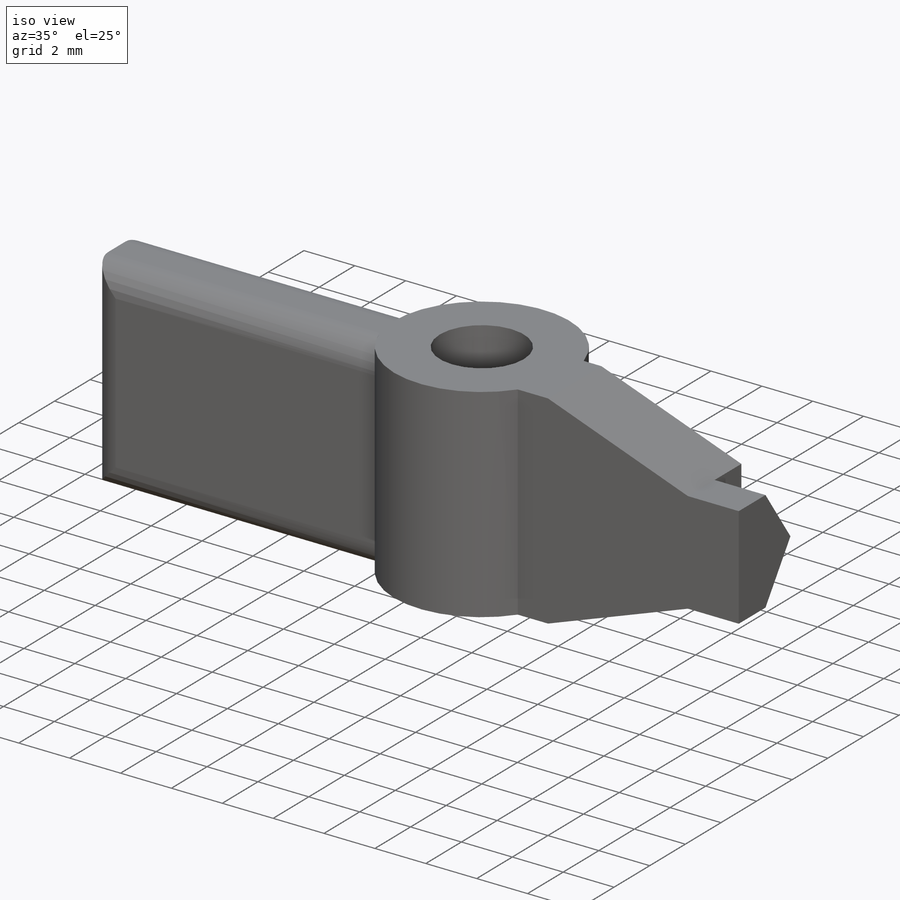
[diagram: iso view]
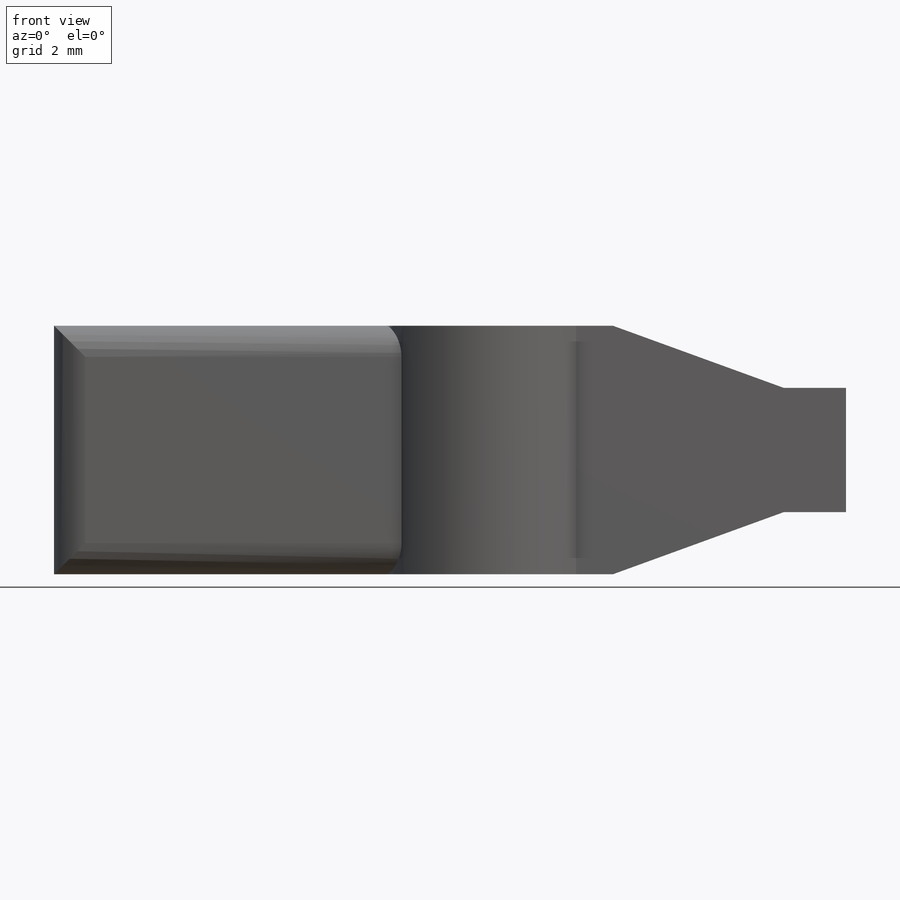
[diagram: front view]
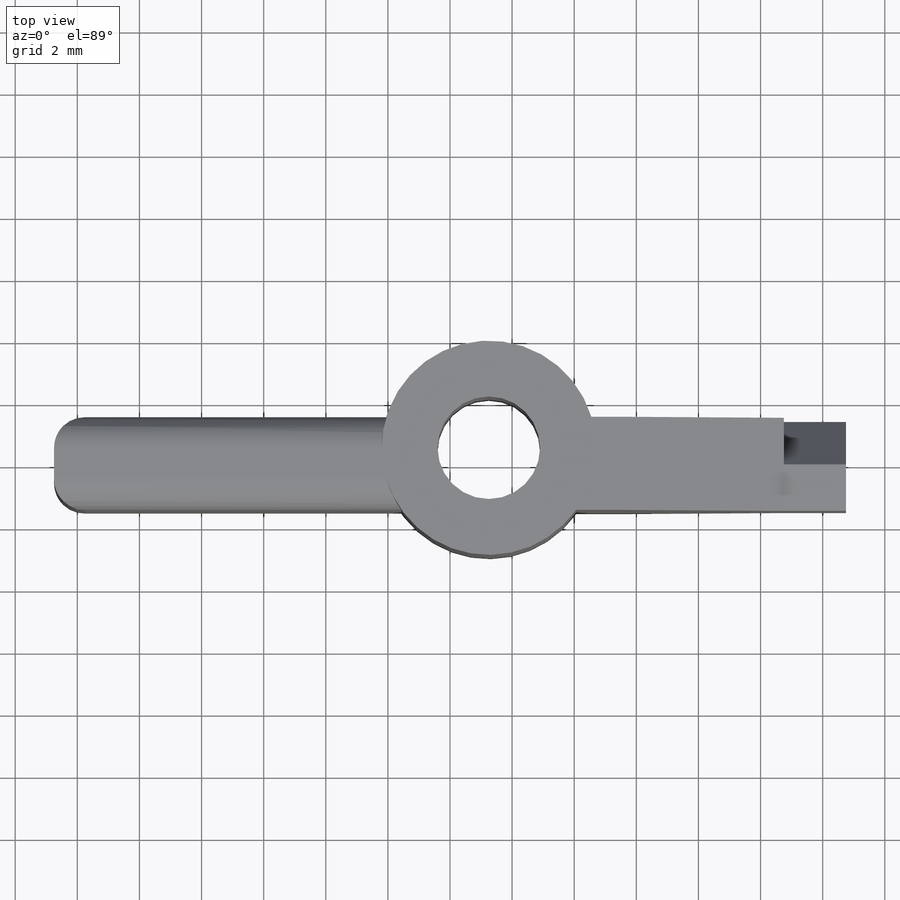
[diagram: top view]
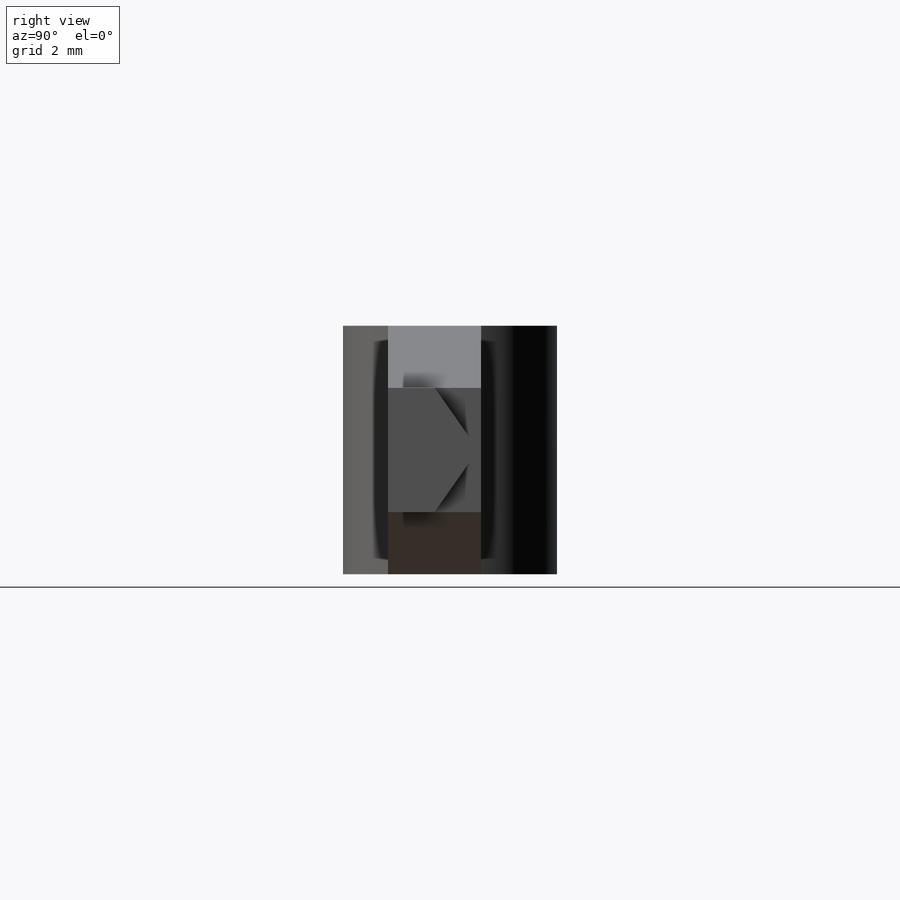
[diagram: right view]
SOLIDWORKS PART (.sldprt)
format: sldprt  version: not decoded by parser v0  size: 201,216 bytes
history: native  units: mm
features: sketch x3, cut_extrude x2, material x1, extrude x1, fillet x1 (+13 scaffold rows collapsed)
feature tree (21):
  scaffold x13  (default folders/planes/origin — collapsed)
  material  "Material <not specified>"
  sketch  "Sketch1"  dims[c1.D1=5.25mm c1.D2=10.75mm c1.D3=11.75mm c1.D4=~11.759921mm c1.D5=12.75mm c1.D6=2.75mm c1.D7=12.75mm c1.D8=2.0mm c1.D9=4.0mm c1.D10=~0.989471mm c1.D11=1.0mm c1.D12=~1.999999mm c1.D13=4.0mm c2.D8=2.0mm c2.D9=4.0mm]
  extrude  "Boss-Extrude1"  Depth=7mm
  sketch  "Sketch2"  dims[c1.D1=3.3mm c1.D2=3.5mm c2.D1=~3.451041mm c2.D3=~10.645898mm c2.D4=~11.127719mm c2.D5=14.0mm c2.D6=~16.872281mm c2.D7=~17.354102mm c2.D8=25.5mm c3.D3=~10.645898mm c3.D4=~11.127719mm c3.D5=14.0mm]
  cut_extrude  "Cut-Extrude1"  [1 undecoded]
  sketch  "Sketch3"  dims[c1.D1=1.5mm c1.D2=3.0mm c1.D3=2.0mm c1.D4=~4.000001mm c2.D3=2.0mm c2.D1=0.1mm]
  cut_extrude  "Cut-Extrude2"  Depth=2mm
  fillet  "Fillet1"  Radius=1mm
decode coverage: 6 of 7 modeling features carry decoded parameters
note: ~ marks probable driven/reference dimensions
note: 1 parameter value undecoded
note: suppression state not decoded; provenance and decode notes live in map.json
